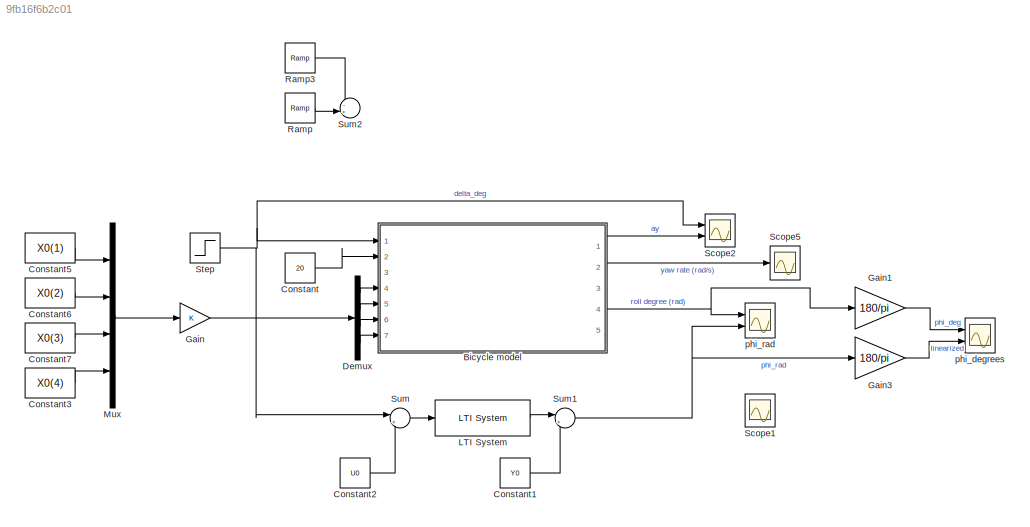
MODEL slx_9fb16f6b2c01
KIND model
CONFIG AbsTol = auto
CONFIG EnableMultiTasking = off
CONFIG FixedStep = auto
CONFIG MaxStep = auto
CONFIG MinStep = auto
CONFIG RelTol = 1e-3
CONFIG SampleTimeConstraint = Unconstrained
CONFIG SolverName = VariableStepAuto
CONFIG StartTime = 0.0
CONFIG StopTime = 10
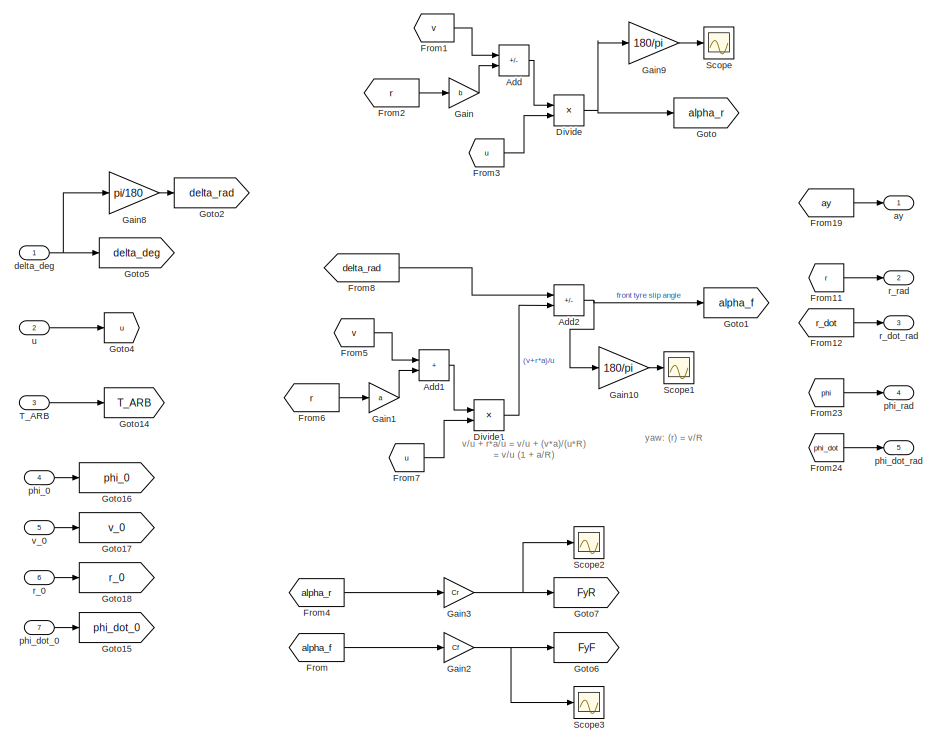
[diagram: Bicycle model - part 1/2, top center region]
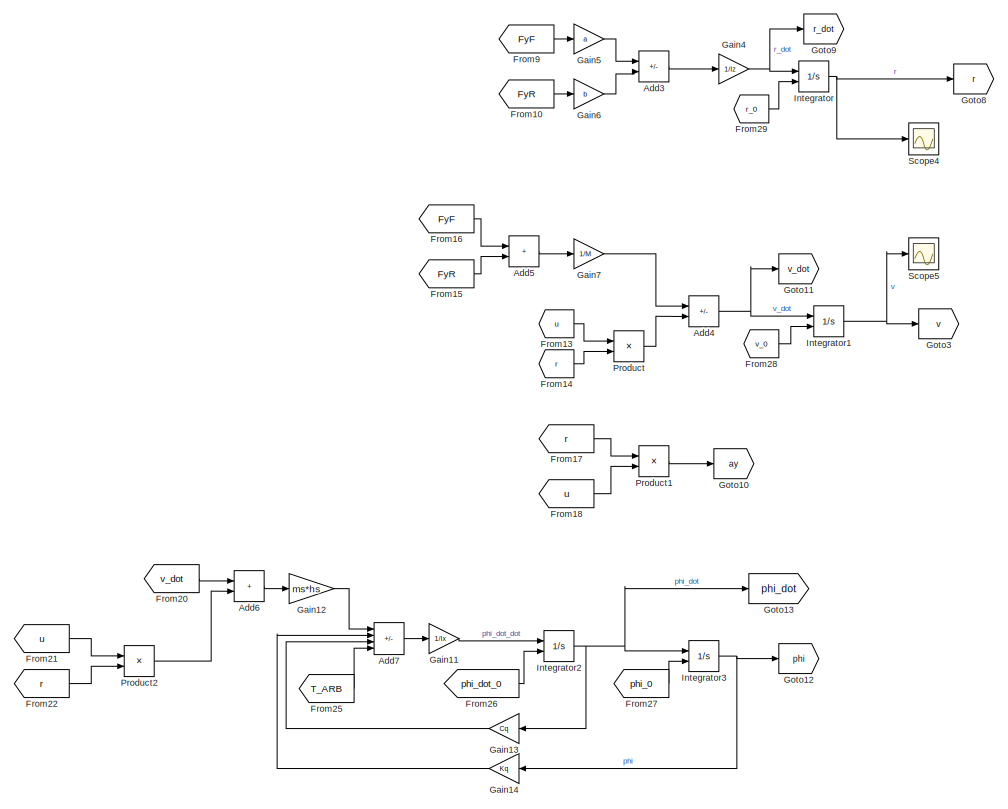
[diagram: Bicycle model - part 2/2, full width, bottom band]
BLOCK [SubSystem] Bicycle model
  Ports = [7, 5]
  RequestExecContextInheritance = off
BLOCK [Sum] Bicycle model/Add
  IconShape = rectangular
  Inputs = -+
  Ports = [2, 1]
BLOCK [Sum] Bicycle model/Add1
  IconShape = rectangular
  Ports = [2, 1]
BLOCK [Sum] Bicycle model/Add2
  IconShape = rectangular
  Inputs = +-
  Ports = [2, 1]
BLOCK [Sum] Bicycle model/Add3
  IconShape = rectangular
  Inputs = +-
  Ports = [2, 1]
BLOCK [Sum] Bicycle model/Add4
  IconShape = rectangular
  Inputs = +-
  Ports = [2, 1]
BLOCK [Sum] Bicycle model/Add5
  IconShape = rectangular
  Ports = [2, 1]
BLOCK [Sum] Bicycle model/Add6
  IconShape = rectangular
  Ports = [2, 1]
BLOCK [Sum] Bicycle model/Add7
  IconShape = rectangular
  Inputs = +---
  Ports = [4, 1]
BLOCK [Product] Bicycle model/Divide
  Inputs = */
  Ports = [2, 1]
BLOCK [Product] Bicycle model/Divide1
  Inputs = */
  Ports = [2, 1]
BLOCK [From] Bicycle model/From
  GotoTag = alpha_f
BLOCK [From] Bicycle model/From1
  GotoTag = v
BLOCK [From] Bicycle model/From10
  GotoTag = FyR
BLOCK [From] Bicycle model/From11
  GotoTag = r
BLOCK [From] Bicycle model/From12
  GotoTag = r_dot
BLOCK [From] Bicycle model/From13
  GotoTag = u
BLOCK [From] Bicycle model/From14
  GotoTag = r
BLOCK [From] Bicycle model/From15
  GotoTag = FyR
BLOCK [From] Bicycle model/From16
  GotoTag = FyF
BLOCK [From] Bicycle model/From17
  GotoTag = r
BLOCK [From] Bicycle model/From18
  GotoTag = u
BLOCK [From] Bicycle model/From19
  GotoTag = ay
BLOCK [From] Bicycle model/From2
  GotoTag = r
BLOCK [From] Bicycle model/From20
  GotoTag = v_dot
BLOCK [From] Bicycle model/From21
  GotoTag = u
BLOCK [From] Bicycle model/From22
  GotoTag = r
BLOCK [From] Bicycle model/From23
  GotoTag = phi
BLOCK [From] Bicycle model/From24
  GotoTag = phi_dot
BLOCK [From] Bicycle model/From25
  GotoTag = T_ARB
BLOCK [From] Bicycle model/From26
  GotoTag = phi_dot_0
BLOCK [From] Bicycle model/From27
  GotoTag = phi_0
BLOCK [From] Bicycle model/From28
  GotoTag = v_0
BLOCK [From] Bicycle model/From29
  GotoTag = r_0
BLOCK [From] Bicycle model/From3
  GotoTag = u
BLOCK [From] Bicycle model/From4
  GotoTag = alpha_r
BLOCK [From] Bicycle model/From5
  GotoTag = v
BLOCK [From] Bicycle model/From6
  GotoTag = r
BLOCK [From] Bicycle model/From7
  GotoTag = u
BLOCK [From] Bicycle model/From8
  GotoTag = delta_rad
BLOCK [From] Bicycle model/From9
  GotoTag = FyF
BLOCK [Gain] Bicycle model/Gain
  Gain = b
BLOCK [Gain] Bicycle model/Gain1
  Gain = a
BLOCK [Gain] Bicycle model/Gain10
  Gain = 180/pi
BLOCK [Gain] Bicycle model/Gain11
  Gain = 1/Ix
BLOCK [Gain] Bicycle model/Gain12
  Gain = ms*hs
BLOCK [Gain] Bicycle model/Gain13
  Gain = Cq
  NameLocation = top
BLOCK [Gain] Bicycle model/Gain14
  Gain = Kq
  NameLocation = top
BLOCK [Gain] Bicycle model/Gain2
  Gain = Cf
BLOCK [Gain] Bicycle model/Gain3
  Gain = Cr
BLOCK [Gain] Bicycle model/Gain4
  Gain = 1/Iz
BLOCK [Gain] Bicycle model/Gain5
  Gain = a
BLOCK [Gain] Bicycle model/Gain6
  Gain = b
BLOCK [Gain] Bicycle model/Gain7
  Gain = 1/M
BLOCK [Gain] Bicycle model/Gain8
  Gain = pi/180
BLOCK [Gain] Bicycle model/Gain9
  Gain = 180/pi
BLOCK [Goto] Bicycle model/Goto
  GotoTag = alpha_r
BLOCK [Goto] Bicycle model/Goto1
  GotoTag = alpha_f
BLOCK [Goto] Bicycle model/Goto10
  GotoTag = ay
BLOCK [Goto] Bicycle model/Goto11
  GotoTag = v_dot
BLOCK [Goto] Bicycle model/Goto12
  GotoTag = phi
BLOCK [Goto] Bicycle model/Goto13
  GotoTag = phi_dot
BLOCK [Goto] Bicycle model/Goto14
  GotoTag = T_ARB
BLOCK [Goto] Bicycle model/Goto15
  GotoTag = phi_dot_0
BLOCK [Goto] Bicycle model/Goto16
  GotoTag = phi_0
BLOCK [Goto] Bicycle model/Goto17
  GotoTag = v_0
BLOCK [Goto] Bicycle model/Goto18
  GotoTag = r_0
BLOCK [Goto] Bicycle model/Goto2
  GotoTag = delta_rad
BLOCK [Goto] Bicycle model/Goto3
  GotoTag = v
BLOCK [Goto] Bicycle model/Goto4
  GotoTag = u
BLOCK [Goto] Bicycle model/Goto5
  Commented = on
  GotoTag = delta_deg
BLOCK [Goto] Bicycle model/Goto6
  GotoTag = FyF
BLOCK [Goto] Bicycle model/Goto7
  GotoTag = FyR
BLOCK [Goto] Bicycle model/Goto8
  GotoTag = r
BLOCK [Goto] Bicycle model/Goto9
  GotoTag = r_dot
BLOCK [Integrator] Bicycle model/Integrator
  InitialConditionSource = external
  Ports = [2, 1]
BLOCK [Integrator] Bicycle model/Integrator1
  InitialConditionSource = external
  Ports = [2, 1]
BLOCK [Integrator] Bicycle model/Integrator2
  InitialConditionSource = external
  Ports = [2, 1]
BLOCK [Integrator] Bicycle model/Integrator3
  InitialConditionSource = external
  Ports = [2, 1]
BLOCK [Product] Bicycle model/Product
  Ports = [2, 1]
BLOCK [Product] Bicycle model/Product1
  Ports = [2, 1]
BLOCK [Product] Bicycle model/Product2
  Ports = [2, 1]
BLOCK [Scope] Bicycle model/Scope
  Floating = off
  NumInputPorts = 1
  Ports = [1]
  ScopeSpecificationString = Simulink.scopes.TimeScopeBlockCfg('CurrentConfiguration', extmgr.ConfigurationSet(extmgr.Configuration('Core','General UI',true,'FigureColor',[1 1 1]),extmgr.Configuration('Core','Source UI',true),extmgr.Configuration('Sources','WiredSimulink',true,'DataLoggingVariableName','ScopeData2'),extmgr.Configuration('Visuals','Time Domain',true,'SerializedDisplays',{struct('MinYLimReal','-26.98488','MaxYL...<+1555ch>
BLOCK [Scope] Bicycle model/Scope1
  Floating = off
  NumInputPorts = 1
  Ports = [1]
  ScopeSpecificationString = Simulink.scopes.TimeScopeBlockCfg('CurrentConfiguration', extmgr.ConfigurationSet(extmgr.Configuration('Core','General UI',true,'FigureColor',[1 1 1]),extmgr.Configuration('Core','Source UI',true),extmgr.Configuration('Sources','WiredSimulink',true,'DataLoggingVariableName','ScopeData3'),extmgr.Configuration('Visuals','Time Domain',true,'SerializedDisplays',{struct('MinYLimReal','-30.65544','MaxYL...<+1542ch>
BLOCK [Scope] Bicycle model/Scope2
  Floating = off
  NumInputPorts = 1
  Ports = [1]
  ScopeSpecificationString = Simulink.scopes.TimeScopeBlockCfg('CurrentConfiguration', extmgr.ConfigurationSet(extmgr.Configuration('Core','General UI',true,'FigureColor',[1 1 1]),extmgr.Configuration('Core','Source UI',true),extmgr.Configuration('Sources','WiredSimulink',true,'DataLoggingVariableName','ScopeData4'),extmgr.Configuration('Visuals','Time Domain',true,'SerializedDisplays',{struct('MinYLimReal','-2248.73985','Max...<+1577ch>
BLOCK [Scope] Bicycle model/Scope3
  Floating = off
  NumInputPorts = 1
  Ports = [1]
  ScopeSpecificationString = Simulink.scopes.TimeScopeBlockCfg('CurrentConfiguration', extmgr.ConfigurationSet(extmgr.Configuration('Core','General UI',true,'FigureColor',[1 1 1]),extmgr.Configuration('Core','Source UI',true),extmgr.Configuration('Sources','WiredSimulink',true,'DataLoggingVariableName','ScopeData5'),extmgr.Configuration('Visuals','Time Domain',true,'SerializedDisplays',{struct('MinYLimReal','-2554.61988','Max...<+1577ch>
BLOCK [Scope] Bicycle model/Scope4
  Floating = off
  NumInputPorts = 1
  Ports = [1]
  ScopeSpecificationString = Simulink.scopes.TimeScopeBlockCfg('CurrentConfiguration', extmgr.ConfigurationSet(extmgr.Configuration('Core','General UI',true,'FigureColor',[1 1 1]),extmgr.Configuration('Core','Source UI',true),extmgr.Configuration('Sources','WiredSimulink',true,'DataLoggingVariableName','ScopeData6'),extmgr.Configuration('Visuals','Time Domain',true,'SerializedDisplays',{struct('MinYLimReal','0.25908','MaxYLim...<+1823ch>
BLOCK [Scope] Bicycle model/Scope5
  Floating = off
  NumInputPorts = 1
  Ports = [1]
  ScopeSpecificationString = Simulink.scopes.TimeScopeBlockCfg('CurrentConfiguration', extmgr.ConfigurationSet(extmgr.Configuration('Core','General UI',true,'FigureColor',[1 1 1]),extmgr.Configuration('Core','Source UI',true),extmgr.Configuration('Sources','WiredSimulink',true,'DataLoggingVariableName','ScopeData7'),extmgr.Configuration('Visuals','Time Domain',true,'SerializedDisplays',{struct('MinYLimReal','-2.00298','MaxYLi...<+1547ch>
BLOCK [Inport] Bicycle model/T_ARB
  Port = 3
BLOCK [Outport] Bicycle model/ay
BLOCK [Inport] Bicycle model/delta_deg
BLOCK [Inport] Bicycle model/phi_0
  Port = 4
BLOCK [Inport] Bicycle model/phi_dot_0
  Port = 7
BLOCK [Outport] Bicycle model/phi_dot_rad
  Port = 5
BLOCK [Outport] Bicycle model/phi_rad
  Port = 4
BLOCK [Inport] Bicycle model/r_0
  Port = 6
BLOCK [Outport] Bicycle model/r_dot_rad
  Port = 3
BLOCK [Outport] Bicycle model/r_rad
  Port = 2
BLOCK [Inport] Bicycle model/u
  Port = 2
BLOCK [Inport] Bicycle model/v_0
  Port = 5
BLOCK [Constant] Constant
  Value = 20
BLOCK [Constant] Constant1
  Value = Y0
BLOCK [Constant] Constant2
  Value = U0
BLOCK [Constant] Constant3
  Value = X0(4)
BLOCK [Constant] Constant5
  Value = X0(1)
BLOCK [Constant] Constant6
  Value = X0(2)
BLOCK [Constant] Constant7
  Value = X0(3)
BLOCK [Demux] Demux
  Ports = [1, 4]
BLOCK [Gain] Gain
BLOCK [Gain] Gain1
  Gain = 180/pi
BLOCK [Gain] Gain3
  Gain = 180/pi
BLOCK [Reference] LTI System  REF=cstblocks/LTI System
  Ports = [1, 1]
  SourceBlock = cstblocks/LTI System
  SourceProductBaseCode = CT
  SourceType = LTI Block
BLOCK [Mux] Mux
  DisplayOption = bar
  Ports = [4, 1]
BLOCK [Reference] Ramp  REF=simulink/Sources/Ramp
  Ports = [0, 1]
  SourceBlock = simulink/Sources/Ramp
  SourceProductBaseCode = SL
  SourceType = Ramp
BLOCK [Reference] Ramp3  REF=simulink/Sources/Ramp
  Ports = [0, 1]
  SourceBlock = simulink/Sources/Ramp
  SourceProductBaseCode = SL
  SourceType = Ramp
BLOCK [Scope] Scope1
  Floating = off
  NumInputPorts = 2
  Ports = [2]
  ScopeSpecificationString = Simulink.scopes.TimeScopeBlockCfg('CurrentConfiguration', extmgr.ConfigurationSet(extmgr.Configuration('Core','General UI',true,'FigureColor',[1 1 1]),extmgr.Configuration('Core','Source UI',true),extmgr.Configuration('Sources','WiredSimulink',true,'DataLoggingVariableName','ScopeData1'),extmgr.Configuration('Visuals','Time Domain',true,'SerializedDisplays',{struct('MinYLimReal','-0.00026','MaxYLi...<+1592ch>
BLOCK [Scope] Scope2
  Floating = off
  NumInputPorts = 2
  Ports = [2]
  ScopeSpecificationString = Simulink.scopes.TimeScopeBlockCfg('CurrentConfiguration', extmgr.ConfigurationSet(extmgr.Configuration('Core','General UI',true,'FigureColor',[1 1 1]),extmgr.Configuration('Core','Source UI',true),extmgr.Configuration('Sources','WiredSimulink',true,'DataLoggingVariableName','ScopeData1'),extmgr.Configuration('Visuals','Time Domain',true,'SerializedDisplays',{struct('MinYLimReal','2.57753','MaxYLim...<+1568ch>
BLOCK [Scope] Scope5
  Floating = off
  NumInputPorts = 1
  Ports = [1]
  ScopeSpecificationString = Simulink.scopes.TimeScopeBlockCfg('CurrentConfiguration', extmgr.ConfigurationSet(extmgr.Configuration('Core','General UI',true,'FigureColor',[1 1 1]),extmgr.Configuration('Core','Source UI',true),extmgr.Configuration('Sources','WiredSimulink',true,'DataLoggingVariableName','ScopeData2'),extmgr.Configuration('Visuals','Time Domain',true,'SerializedDisplays',{struct('MinYLimReal','0.25908','MaxYLim...<+1593ch>
BLOCK [Step] Step
  After = U0+0.5
  SampleTime = 0
  Time = 0
BLOCK [Sum] Sum
  Inputs = |+-
  Ports = [2, 1]
BLOCK [Sum] Sum1
  Inputs = |++
  Ports = [2, 1]
BLOCK [Sum] Sum2
  Inputs = -+|
  Ports = [2, 1]
BLOCK [Scope] phi_degrees
  Floating = off
  NumInputPorts = 2
  Ports = [2]
  ScopeSpecificationString = Simulink.scopes.TimeScopeBlockCfg('CurrentConfiguration', extmgr.ConfigurationSet(extmgr.Configuration('Core','General UI',true,'FigureColor',[1 1 1]),extmgr.Configuration('Core','Source UI',true),extmgr.Configuration('Sources','WiredSimulink',true,'DataLoggingVariableName','ScopeData1'),extmgr.Configuration('Visuals','Time Domain',true,'SerializedDisplays',{struct('MinYLimReal','3.499','MaxYLimRe...<+1632ch>
BLOCK [Scope] phi_rad
  Floating = off
  NumInputPorts = 2
  Ports = [2]
  ScopeSpecificationString = Simulink.scopes.TimeScopeBlockCfg('CurrentConfiguration', extmgr.ConfigurationSet(extmgr.Configuration('Core','General UI',true,'FigureColor',[1 1 1]),extmgr.Configuration('Core','Source UI',true),extmgr.Configuration('Sources','WiredSimulink',true,'DataLoggingVariableName','ScopeData1'),extmgr.Configuration('Visuals','Time Domain',true,'SerializedDisplays',{struct('MinYLimReal','0.07287','MaxYLim...<+1648ch>
ANNOTATION Bicycle model: v/u + r*a/u = v/u + (v*a)/(u*R) = v/u (1 + a/R)
ANNOTATION Bicycle model: yaw: (r) = v/R
LINE Bicycle model/Add1:1 -> Bicycle model/Divide1:1
NET Bicycle model/Add2:1 -> Bicycle model/Gain10:1, Bicycle model/Goto1:1
LINE Bicycle model/Add3:1 -> Bicycle model/Gain4:1
NET Bicycle model/Add4:1 -> Bicycle model/Goto11:1, Bicycle model/Integrator1:1
LINE Bicycle model/Add5:1 -> Bicycle model/Gain7:1
LINE Bicycle model/Add6:1 -> Bicycle model/Gain12:1
LINE Bicycle model/Add7:1 -> Bicycle model/Gain11:1
LINE Bicycle model/Add:1 -> Bicycle model/Divide:1
LINE Bicycle model/Divide1:1 -> Bicycle model/Add2:2
NET Bicycle model/Divide:1 -> Bicycle model/Gain9:1, Bicycle model/Goto:1
LINE Bicycle model/From10:1 -> Bicycle model/Gain6:1
LINE Bicycle model/From11:1 -> Bicycle model/r_rad:1
LINE Bicycle model/From12:1 -> Bicycle model/r_dot_rad:1
LINE Bicycle model/From13:1 -> Bicycle model/Product:1
LINE Bicycle model/From14:1 -> Bicycle model/Product:2
LINE Bicycle model/From15:1 -> Bicycle model/Add5:2
LINE Bicycle model/From16:1 -> Bicycle model/Add5:1
LINE Bicycle model/From17:1 -> Bicycle model/Product1:1
LINE Bicycle model/From18:1 -> Bicycle model/Product1:2
LINE Bicycle model/From19:1 -> Bicycle model/ay:1
LINE Bicycle model/From1:1 -> Bicycle model/Add:1
LINE Bicycle model/From20:1 -> Bicycle model/Add6:1
LINE Bicycle model/From21:1 -> Bicycle model/Product2:1
LINE Bicycle model/From22:1 -> Bicycle model/Product2:2
LINE Bicycle model/From23:1 -> Bicycle model/phi_rad:1
LINE Bicycle model/From24:1 -> Bicycle model/phi_dot_rad:1
LINE Bicycle model/From25:1 -> Bicycle model/Add7:4
LINE Bicycle model/From26:1 -> Bicycle model/Integrator2:2
LINE Bicycle model/From27:1 -> Bicycle model/Integrator3:2
LINE Bicycle model/From28:1 -> Bicycle model/Integrator1:2
LINE Bicycle model/From29:1 -> Bicycle model/Integrator:2
LINE Bicycle model/From2:1 -> Bicycle model/Gain:1
LINE Bicycle model/From3:1 -> Bicycle model/Divide:2
LINE Bicycle model/From4:1 -> Bicycle model/Gain3:1
LINE Bicycle model/From5:1 -> Bicycle model/Add1:1
LINE Bicycle model/From6:1 -> Bicycle model/Gain1:1
LINE Bicycle model/From7:1 -> Bicycle model/Divide1:2
LINE Bicycle model/From8:1 -> Bicycle model/Add2:1
LINE Bicycle model/From9:1 -> Bicycle model/Gain5:1
LINE Bicycle model/From:1 -> Bicycle model/Gain2:1
LINE Bicycle model/Gain10:1 -> Bicycle model/Scope1:1
LINE Bicycle model/Gain11:1 -> Bicycle model/Integrator2:1
LINE Bicycle model/Gain12:1 -> Bicycle model/Add7:1
LINE Bicycle model/Gain13:1 -> Bicycle model/Add7:3
LINE Bicycle model/Gain14:1 -> Bicycle model/Add7:2
LINE Bicycle model/Gain1:1 -> Bicycle model/Add1:2
NET Bicycle model/Gain2:1 -> Bicycle model/Goto6:1, Bicycle model/Scope3:1
NET Bicycle model/Gain3:1 -> Bicycle model/Goto7:1, Bicycle model/Scope2:1
NET Bicycle model/Gain4:1 -> Bicycle model/Goto9:1, Bicycle model/Integrator:1
LINE Bicycle model/Gain5:1 -> Bicycle model/Add3:1
LINE Bicycle model/Gain6:1 -> Bicycle model/Add3:2
LINE Bicycle model/Gain7:1 -> Bicycle model/Add4:1
LINE Bicycle model/Gain8:1 -> Bicycle model/Goto2:1
LINE Bicycle model/Gain9:1 -> Bicycle model/Scope:1
LINE Bicycle model/Gain:1 -> Bicycle model/Add:2
NET Bicycle model/Integrator1:1 -> Bicycle model/Goto3:1, Bicycle model/Scope5:1
NET Bicycle model/Integrator2:1 -> Bicycle model/Gain13:1, Bicycle model/Goto13:1, Bicycle model/Integrator3:1
NET Bicycle model/Integrator3:1 -> Bicycle model/Gain14:1, Bicycle model/Goto12:1
NET Bicycle model/Integrator:1 -> Bicycle model/Goto8:1, Bicycle model/Scope4:1
LINE Bicycle model/Product1:1 -> Bicycle model/Goto10:1
LINE Bicycle model/Product2:1 -> Bicycle model/Add6:2
LINE Bicycle model/Product:1 -> Bicycle model/Add4:2
LINE Bicycle model/T_ARB:1 -> Bicycle model/Goto14:1
NET Bicycle model/delta_deg:1 -> Bicycle model/Gain8:1, Bicycle model/Goto5:1
LINE Bicycle model/phi_0:1 -> Bicycle model/Goto16:1
LINE Bicycle model/phi_dot_0:1 -> Bicycle model/Goto15:1
LINE Bicycle model/r_0:1 -> Bicycle model/Goto18:1
LINE Bicycle model/u:1 -> Bicycle model/Goto4:1
LINE Bicycle model/v_0:1 -> Bicycle model/Goto17:1
LINE Bicycle model:1 -> Scope2:2
LINE Bicycle model:2 -> Scope5:1
NET Bicycle model:4 -> Gain1:1, phi_rad:1
LINE Constant1:1 -> Sum1:2
LINE Constant2:1 -> Sum:2
LINE Constant3:1 -> Mux:4
LINE Constant5:1 -> Mux:1
LINE Constant6:1 -> Mux:2
LINE Constant7:1 -> Mux:3
LINE Constant:1 -> Bicycle model:2
LINE Demux:1 -> Bicycle model:4
LINE Demux:2 -> Bicycle model:5
LINE Demux:3 -> Bicycle model:6
LINE Demux:4 -> Bicycle model:7
LINE Gain1:1 -> phi_degrees:1
LINE Gain3:1 -> phi_degrees:2
LINE Gain:1 -> Demux:1
LINE LTI System:1 -> Sum1:1
LINE Mux:1 -> Gain:1
LINE Ramp3:1 -> Sum2:1
LINE Ramp:1 -> Sum2:2
NET Step:1 -> Bicycle model:1, Scope2:1, Sum:1
NET Sum1:1 -> Gain3:1, phi_rad:2
LINE Sum:1 -> LTI System:1
note: NET lines group one-source signal fan-out (src -> all destinations, sorted); 1:1 wires keep LINE
